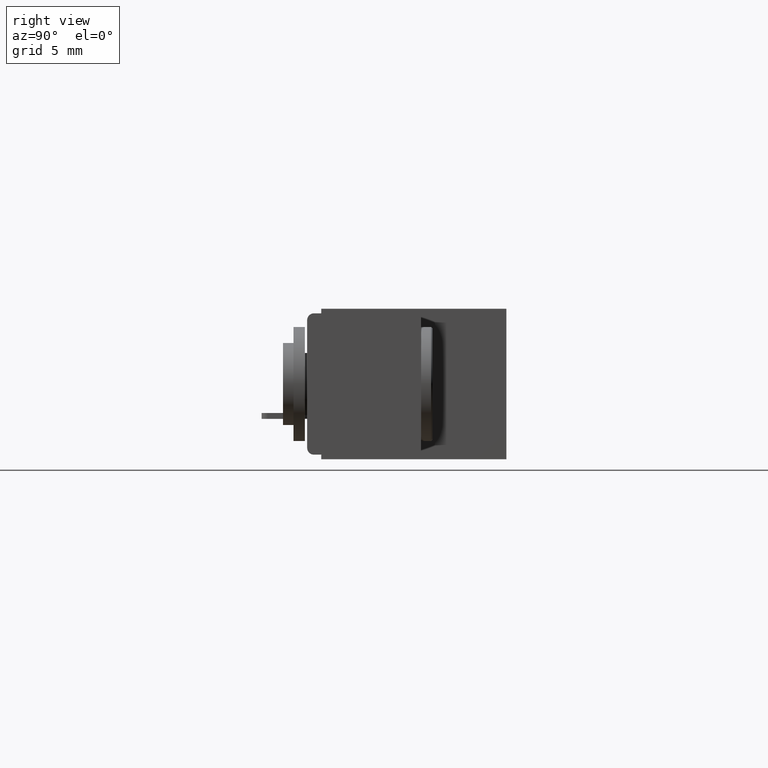
[diagram: clean part render]
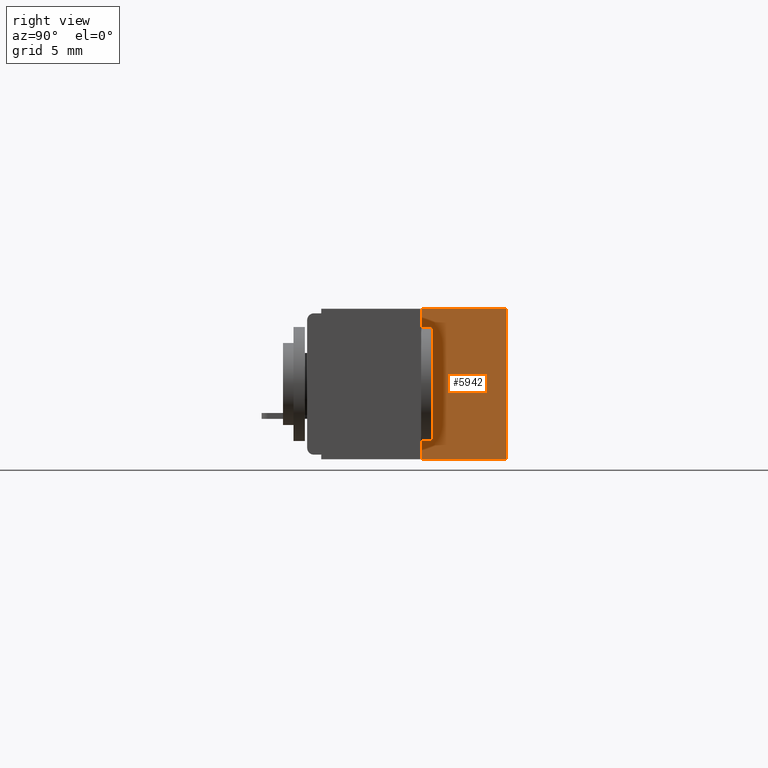
[diagram: same view with one face highlighted and labeled with its STEP entity id]
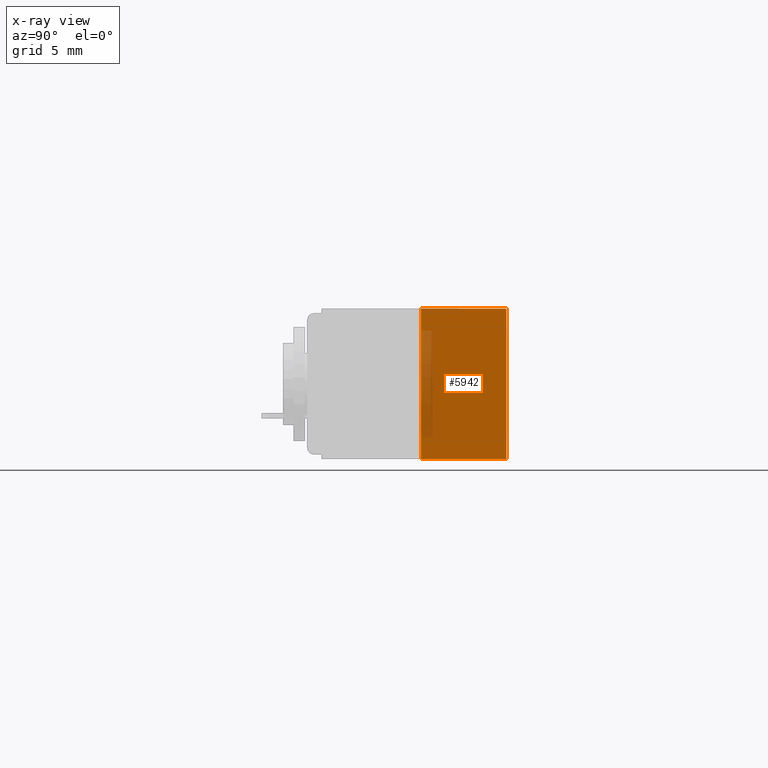
[diagram: x-ray of the same camera — body ghosted, the highlighted face saturated]
A machine part, right view. The second image highlights one B-rep face of the part: STEP entity #5942.
The next image is the same camera in x-ray: the body ghosted, the highlighted face saturated — about 10% of this face is hidden behind the body in this view.
In plain terms, the highlighted planar face has unit normal (-1, 0, 0).
Its self-contained STEP definition (entity closure, byte-faithful):
#245 = DIRECTION ( 'NONE',  ( 0.0000000000000000000, 0.0000000000000000000, 1.000000000000000000 ) ) ;
#805 = CARTESIAN_POINT ( 'NONE',  ( 1.175000000000000000, 0.4370000000000000000, -0.3300000000000000200 ) ) ;
#1428 = VERTEX_POINT ( 'NONE', #6252 ) ;
#1927 = EDGE_CURVE ( 'NONE', #1428, #2488, #11373, .T. ) ;
#2085 = ORIENTED_EDGE ( 'NONE', *, *, #11791, .T. ) ;
#2244 = DIRECTION ( 'NONE',  ( 0.0000000000000000000, 0.0000000000000000000, 1.000000000000000000 ) ) ;
#2324 = DIRECTION ( 'NONE',  ( -1.000000000000000000, 0.0000000000000000000, 0.0000000000000000000 ) ) ;
#2384 = PLANE ( 'NONE',  #8420 ) ;
#2400 = EDGE_CURVE ( 'NONE', #1428, #6236, #9038, .T. ) ;
#2488 = VERTEX_POINT ( 'NONE', #805 ) ;
#2625 = CARTESIAN_POINT ( 'NONE',  ( 1.175000000000000000, 0.4370000000000000000, -1.836970198721029400E-017 ) ) ;
#2804 = CARTESIAN_POINT ( 'NONE',  ( 1.175000000000000000, 0.2500000000000000000, -0.3300000000000000200 ) ) ;
#3345 = ORIENTED_EDGE ( 'NONE', *, *, #4953, .F. ) ;
#4041 = ORIENTED_EDGE ( 'NONE', *, *, #2400, .F. ) ;
#4177 = ORIENTED_EDGE ( 'NONE', *, *, #1927, .T. ) ;
#4953 = EDGE_CURVE ( 'NONE', #6236, #6389, #5652, .T. ) ;
#5652 = LINE ( 'NONE', #6096, #6308 ) ;
#5942 = ADVANCED_FACE ( 'NONE', ( #12864 ), #2384, .F. ) ;
#5955 = DIRECTION ( 'NONE',  ( -0.0000000000000000000, 1.000000000000000000, -0.0000000000000000000 ) ) ;
#6096 = CARTESIAN_POINT ( 'NONE',  ( 1.175000000000000000, 0.2500000000000000000, -1.836970198721029400E-017 ) ) ;
#6236 = VERTEX_POINT ( 'NONE', #10423 ) ;
#6252 = CARTESIAN_POINT ( 'NONE',  ( 1.175000000000000000, 0.2500000000000000000, -0.3300000000000000200 ) ) ;
#6308 = VECTOR ( 'NONE', #5955, 39.37007874015748100 ) ;
#6389 = VERTEX_POINT ( 'NONE', #2625 ) ;
#7401 = CARTESIAN_POINT ( 'NONE',  ( 1.175000000000000000, 0.2500000000000000000, -0.3300000000000000200 ) ) ;
#8204 = CARTESIAN_POINT ( 'NONE',  ( 1.175000000000000000, 0.4370000000000000000, -0.3300000000000000200 ) ) ;
#8420 = AXIS2_PLACEMENT_3D ( 'NONE', #2804, #2324, #2244 ) ;
#8982 = VECTOR ( 'NONE', #11165, 39.37007874015748100 ) ;
#9038 = LINE ( 'NONE', #7401, #8982 ) ;
#9611 = VECTOR ( 'NONE', #245, 39.37007874015748100 ) ;
#10423 = CARTESIAN_POINT ( 'NONE',  ( 1.175000000000000000, 0.2500000000000000000, -1.836970198721029400E-017 ) ) ;
#10451 = DIRECTION ( 'NONE',  ( -0.0000000000000000000, 1.000000000000000000, -0.0000000000000000000 ) ) ;
#11165 = DIRECTION ( 'NONE',  ( 0.0000000000000000000, 0.0000000000000000000, 1.000000000000000000 ) ) ;
#11373 = LINE ( 'NONE', #11924, #11386 ) ;
#11386 = VECTOR ( 'NONE', #10451, 39.37007874015748100 ) ;
#11791 = EDGE_CURVE ( 'NONE', #2488, #6389, #11812, .T. ) ;
#11812 = LINE ( 'NONE', #8204, #9611 ) ;
#11924 = CARTESIAN_POINT ( 'NONE',  ( 1.175000000000000000, 0.2500000000000000000, -0.3300000000000000200 ) ) ;
#12157 = EDGE_LOOP ( 'NONE', ( #2085, #3345, #4041, #4177 ) ) ;
#12864 = FACE_OUTER_BOUND ( 'NONE', #12157, .T. ) ;